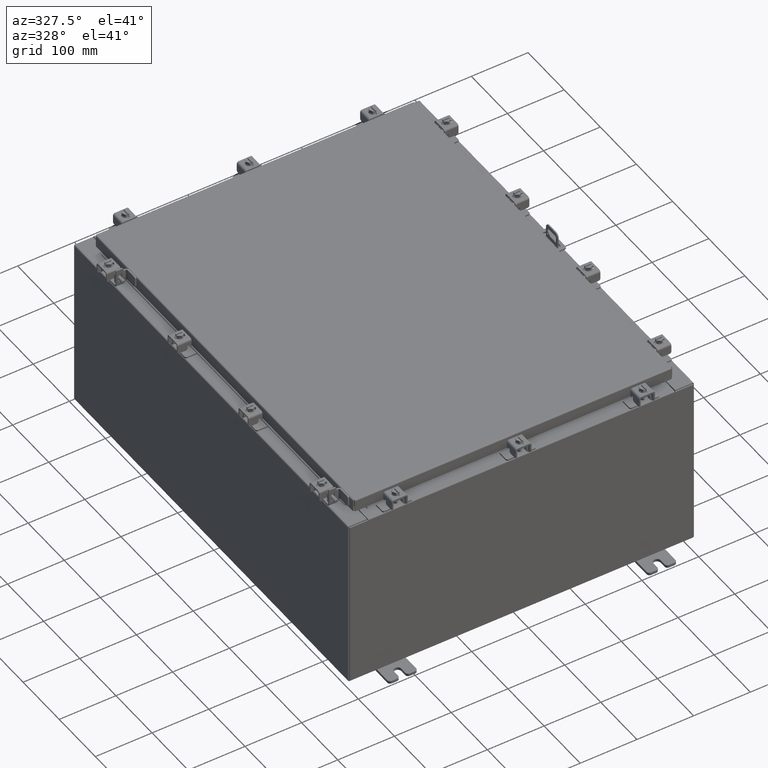
[diagram: clean part render]
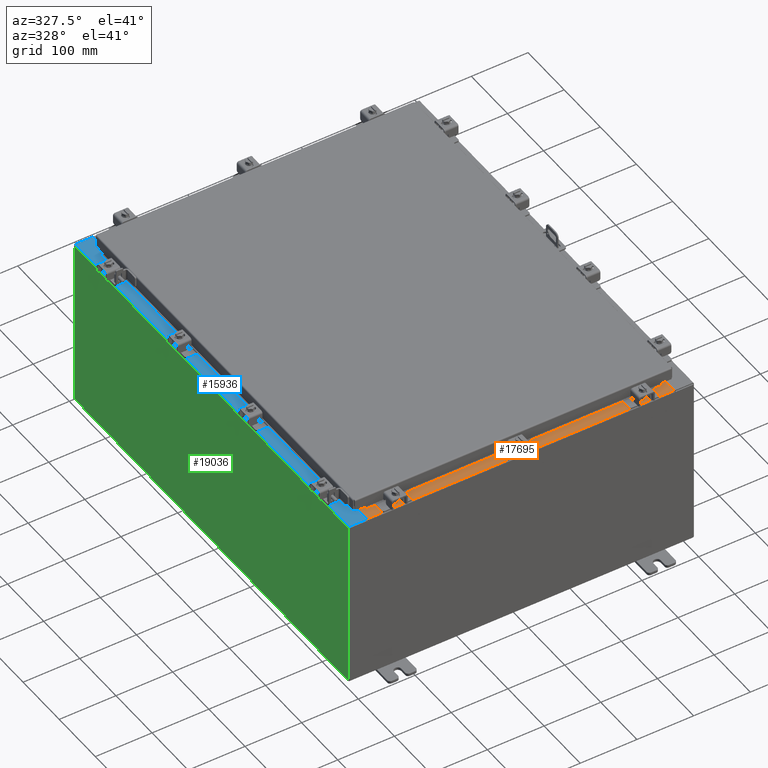
[diagram: same view with three faces highlighted in distinct colors, each labeled with its STEP entity id]
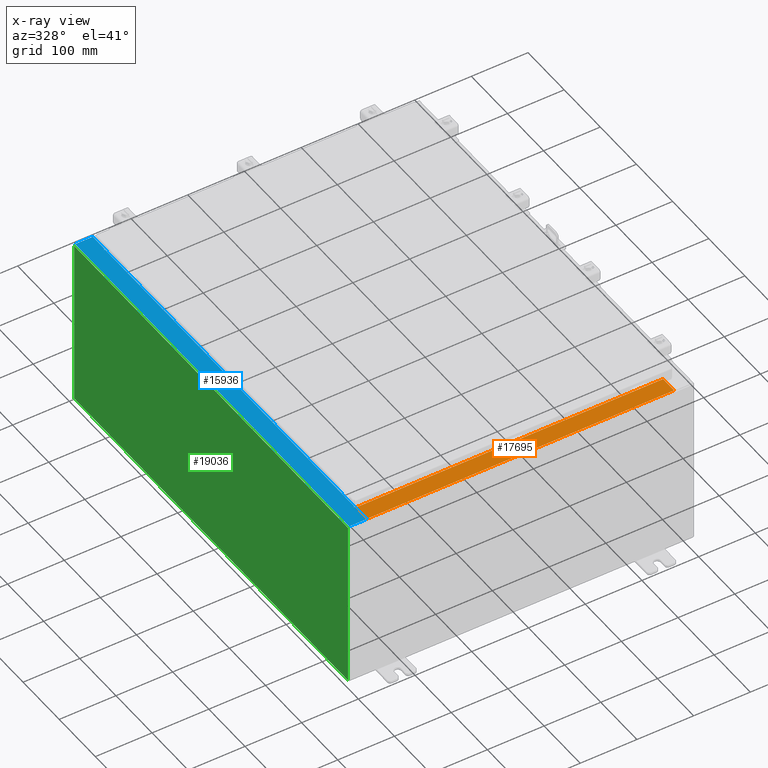
[diagram: x-ray of the same camera — body ghosted, the three highlighted faces saturated]
A machine part, auxiliary view with three faces highlighted in distinct colors.
The next image is the same camera in x-ray (body ghosted, the three faces saturated) — at least one of them is partly hidden behind the body in this view.
Their STEP definitions:

[orange] entity #17695 — the highlighted planar face has unit normal (-0, -0, 1).
#1166 = VECTOR ( 'NONE', #7410, 39.37007874015748100 ) ;
#1513 = LINE ( 'NONE', #16251, #18839 ) ;
#2139 = ORIENTED_EDGE ( 'NONE', *, *, #11378, .F. ) ;
#2371 = CARTESIAN_POINT ( 'NONE',  ( -3.422455537835030400E-018, -0.08770000000000026400, 6.000000000000001800 ) ) ;
#3551 = EDGE_CURVE ( 'NONE', #14423, #11171, #18797, .T. ) ;
#4355 = CARTESIAN_POINT ( 'NONE',  ( -10.63720000000000200, -0.07469999999999973900, 6.000000000000001800 ) ) ;
#6107 = CARTESIAN_POINT ( 'NONE',  ( -10.63720000000000200, -1.287299999999998100, 6.000000000000004400 ) ) ;
#6160 = DIRECTION ( 'NONE',  ( -0.0000000000000000000, 1.000000000000000000, -2.674785894579892700E-015 ) ) ;
#6278 = CARTESIAN_POINT ( 'NONE',  ( -3.422455537835030400E-018, 1.610972251716582100E-014, 6.000000000000001800 ) ) ;
#6653 = EDGE_CURVE ( 'NONE', #14091, #11171, #20348, .T. ) ;
#7178 = VECTOR ( 'NONE', #6160, 39.37007874015748100 ) ;
#7410 = DIRECTION ( 'NONE',  ( -1.000000000000000000, 0.0000000000000000000, 0.0000000000000000000 ) ) ;
#7826 = ORIENTED_EDGE ( 'NONE', *, *, #6653, .F. ) ;
#8051 = DIRECTION ( 'NONE',  ( 0.0000000000000000000, 2.674785894579892700E-015, 1.000000000000000000 ) ) ;
#9132 = CARTESIAN_POINT ( 'NONE',  ( 10.63720000000000400, -0.08770000000000002800, 6.000000000000001800 ) ) ;
#11171 = VERTEX_POINT ( 'NONE', #22974 ) ;
#11257 = LINE ( 'NONE', #12813, #1166 ) ;
#11378 = EDGE_CURVE ( 'NONE', #13032, #14091, #11257, .T. ) ;
#12813 = CARTESIAN_POINT ( 'NONE',  ( 10.63720000000000400, -1.287299999999998800, 6.000000000000003600 ) ) ;
#13032 = VERTEX_POINT ( 'NONE', #19087 ) ;
#13851 = FACE_OUTER_BOUND ( 'NONE', #20810, .T. ) ;
#14091 = VERTEX_POINT ( 'NONE', #6107 ) ;
#14423 = VERTEX_POINT ( 'NONE', #9132 ) ;
#14616 = VECTOR ( 'NONE', #14895, 39.37007874015748100 ) ;
#14886 = AXIS2_PLACEMENT_3D ( 'NONE', #6278, #8051, #20595 ) ;
#14895 = DIRECTION ( 'NONE',  ( -1.000000000000000000, 0.0000000000000000000, 0.0000000000000000000 ) ) ;
#16251 = CARTESIAN_POINT ( 'NONE',  ( 10.63720000000000200, -1.300299999999999800, 6.000000000000006200 ) ) ;
#17695 = ADVANCED_FACE ( 'NONE', ( #13851 ), #20510, .T. ) ;
#18309 = ORIENTED_EDGE ( 'NONE', *, *, #18517, .F. ) ;
#18517 = EDGE_CURVE ( 'NONE', #14423, #13032, #1513, .T. ) ;
#18797 = LINE ( 'NONE', #2371, #14616 ) ;
#18839 = VECTOR ( 'NONE', #21651, 39.37007874015748100 ) ;
#19087 = CARTESIAN_POINT ( 'NONE',  ( 10.63720000000000200, -1.287299999999998800, 6.000000000000006200 ) ) ;
#19941 = ORIENTED_EDGE ( 'NONE', *, *, #3551, .T. ) ;
#20348 = LINE ( 'NONE', #4355, #7178 ) ;
#20510 = PLANE ( 'NONE',  #14886 ) ;
#20595 = DIRECTION ( 'NONE',  ( 0.0000000000000000000, -1.000000000000000000, 2.674785894579892700E-015 ) ) ;
#20810 = EDGE_LOOP ( 'NONE', ( #7826, #2139, #18309, #19941 ) ) ;
#21651 = DIRECTION ( 'NONE',  ( -0.0000000000000000000, -1.000000000000000000, 3.566381192773190000E-015 ) ) ;
#22974 = CARTESIAN_POINT ( 'NONE',  ( -10.63720000000000200, -0.08770000000000026400, 6.000000000000001800 ) ) ;

[blue] entity #15936 — the highlighted planar face has unit normal (0, 0, -1).
#155 = EDGE_CURVE ( 'NONE', #20235, #22117, #14241, .T. ) ;
#286 = VECTOR ( 'NONE', #12819, 39.37007874015748100 ) ;
#306 = CARTESIAN_POINT ( 'NONE',  ( -10.69970000000004800, 13.63109999999999800, 11.92530000000000900 ) ) ;
#308 = EDGE_LOOP ( 'NONE', ( #13298, #14346, #3314, #10104, #14735, #10652, #1954, #13461, #937, #20228, #4313, #1935 ) ) ;
#329 = LINE ( 'NONE', #13853, #4499 ) ;
#531 = DIRECTION ( 'NONE',  ( 1.000000000000000000, -0.0000000000000000000, 7.132762385546384700E-015 ) ) ;
#546 = CARTESIAN_POINT ( 'NONE',  ( -10.71270000000005000, -13.59375000000000000, 11.92530000000000900 ) ) ;
#620 = CARTESIAN_POINT ( 'NONE',  ( -10.75005000000005000, 13.59374999999999800, 11.92530000000000900 ) ) ;
#734 = VERTEX_POINT ( 'NONE', #10073 ) ;
#743 = EDGE_CURVE ( 'NONE', #11649, #2054, #4126, .T. ) ;
#829 = CARTESIAN_POINT ( 'NONE',  ( -10.69970000000004800, 14.92530000000000000, 11.92530000000000900 ) ) ;
#937 = ORIENTED_EDGE ( 'NONE', *, *, #2080, .F. ) ;
#1935 = ORIENTED_EDGE ( 'NONE', *, *, #19782, .F. ) ;
#1954 = ORIENTED_EDGE ( 'NONE', *, *, #11403, .F. ) ;
#2054 = VERTEX_POINT ( 'NONE', #17754 ) ;
#2080 = EDGE_CURVE ( 'NONE', #6483, #734, #4955, .T. ) ;
#2138 = CARTESIAN_POINT ( 'NONE',  ( -10.71270000000005000, -13.59375000000000000, 11.92530000000000900 ) ) ;
#2282 = VECTOR ( 'NONE', #4519, 39.37007874015748100 ) ;
#2916 = CARTESIAN_POINT ( 'NONE',  ( -10.69970000000004800, 0.0000000000000000000, 11.92530000000000900 ) ) ;
#3314 = ORIENTED_EDGE ( 'NONE', *, *, #743, .T. ) ;
#4126 = LINE ( 'NONE', #15483, #22034 ) ;
#4153 = EDGE_CURVE ( 'NONE', #10232, #11649, #11778, .T. ) ;
#4313 = ORIENTED_EDGE ( 'NONE', *, *, #20519, .F. ) ;
#4499 = VECTOR ( 'NONE', #19172, 39.37007874015748100 ) ;
#4519 = DIRECTION ( 'NONE',  ( 0.0000000000000000000, 1.000000000000000000, 0.0000000000000000000 ) ) ;
#4590 = EDGE_CURVE ( 'NONE', #10232, #19920, #8663, .T. ) ;
#4853 = CARTESIAN_POINT ( 'NONE',  ( -10.75005000000005000, 13.61242499999999600, 11.92530000000000900 ) ) ;
#4955 = LINE ( 'NONE', #546, #6090 ) ;
#5242 = CARTESIAN_POINT ( 'NONE',  ( -10.75005000000005000, 13.63109999999999600, 11.92530000000000900 ) ) ;
#6090 = VECTOR ( 'NONE', #7665, 39.37007874015748100 ) ;
#6483 = VERTEX_POINT ( 'NONE', #2138 ) ;
#6657 = DIRECTION ( 'NONE',  ( 1.000000000000000000, 0.0000000000000000000, 0.0000000000000000000 ) ) ;
#7022 = CARTESIAN_POINT ( 'NONE',  ( -10.69970000000004800, 13.63109999999999800, 11.92530000000000900 ) ) ;
#7204 = VERTEX_POINT ( 'NONE', #18339 ) ;
#7476 = CARTESIAN_POINT ( 'NONE',  ( -10.75005000000005000, -13.63109999999999800, 11.92530000000000900 ) ) ;
#7655 = CARTESIAN_POINT ( 'NONE',  ( -10.69970000000004800, -13.63110000000000200, 11.92530000000000900 ) ) ;
#7665 = DIRECTION ( 'NONE',  ( -1.000000000000000000, 0.0000000000000000000, 0.0000000000000000000 ) ) ;
#7737 = CARTESIAN_POINT ( 'NONE',  ( -8.532114493236847900E-014, 0.0000000000000000000, 11.92530000000008500 ) ) ;
#7952 = VERTEX_POINT ( 'NONE', #620 ) ;
#8149 = VECTOR ( 'NONE', #16043, 39.37007874015748100 ) ;
#8228 = EDGE_CURVE ( 'NONE', #734, #17680, #16411, .T. ) ;
#8497 = VERTEX_POINT ( 'NONE', #18202 ) ;
#8576 = AXIS2_PLACEMENT_3D ( 'NONE', #20892, #10172, #22659 ) ;
#8585 = VECTOR ( 'NONE', #531, 39.37007874015748100 ) ;
#8663 = LINE ( 'NONE', #306, #286 ) ;
#9463 = PLANE ( 'NONE',  #16363 ) ;
#9515 = CARTESIAN_POINT ( 'NONE',  ( -8.532114493236847900E-014, -14.92530000000000000, 11.92530000000008500 ) ) ;
#9541 = DIRECTION ( 'NONE',  ( -1.000000000000000000, 0.0000000000000000000, -7.132762385546384700E-015 ) ) ;
#9792 = CARTESIAN_POINT ( 'NONE',  ( -10.75005000000005000, -13.63109999999999800, 11.92530000000000900 ) ) ;
#10073 = CARTESIAN_POINT ( 'NONE',  ( -10.75005000000005000, -13.59375000000000000, 11.92530000000000900 ) ) ;
#10104 = ORIENTED_EDGE ( 'NONE', *, *, #11987, .F. ) ;
#10121 = VECTOR ( 'NONE', #20023, 39.37007874015748100 ) ;
#10172 = DIRECTION ( 'NONE',  ( -7.132762385546384700E-015, -0.0000000000000000000, 1.000000000000000000 ) ) ;
#10232 = VERTEX_POINT ( 'NONE', #7022 ) ;
#10652 = ORIENTED_EDGE ( 'NONE', *, *, #155, .T. ) ;
#11249 = EDGE_CURVE ( 'NONE', #7204, #6483, #22424, .T. ) ;
#11367 = DIRECTION ( 'NONE',  ( 0.0000000000000000000, 1.000000000000000000, 0.0000000000000000000 ) ) ;
#11403 = EDGE_CURVE ( 'NONE', #17680, #22117, #19646, .T. ) ;
#11649 = VERTEX_POINT ( 'NONE', #829 ) ;
#11778 = LINE ( 'NONE', #2916, #2282 ) ;
#11987 = EDGE_CURVE ( 'NONE', #8497, #2054, #15991, .T. ) ;
#12794 = LINE ( 'NONE', #9515, #8585 ) ;
#12819 = DIRECTION ( 'NONE',  ( -1.000000000000000000, -4.340572780399910900E-014, 0.0000000000000000000 ) ) ;
#13298 = ORIENTED_EDGE ( 'NONE', *, *, #4590, .F. ) ;
#13461 = ORIENTED_EDGE ( 'NONE', *, *, #8228, .F. ) ;
#13853 = CARTESIAN_POINT ( 'NONE',  ( -10.75005000000005000, 13.59374999999999800, 11.92530000000000900 ) ) ;
#14241 = LINE ( 'NONE', #16751, #18428 ) ;
#14346 = ORIENTED_EDGE ( 'NONE', *, *, #4153, .T. ) ;
#14552 = EDGE_CURVE ( 'NONE', #8497, #20235, #12794, .T. ) ;
#14735 = ORIENTED_EDGE ( 'NONE', *, *, #14552, .T. ) ;
#15483 = CARTESIAN_POINT ( 'NONE',  ( -8.532114493236847900E-014, 14.92530000000000000, 11.92530000000008500 ) ) ;
#15936 = ADVANCED_FACE ( 'NONE', ( #16106 ), #9463, .F. ) ;
#15991 = LINE ( 'NONE', #19691, #19058 ) ;
#16043 = DIRECTION ( 'NONE',  ( -0.0000000000000000000, -1.000000000000000000, -0.0000000000000000000 ) ) ;
#16106 = FACE_OUTER_BOUND ( 'NONE', #308, .T. ) ;
#16115 = CARTESIAN_POINT ( 'NONE',  ( -10.71270000000005000, 13.59375000000000000, 11.92530000000000900 ) ) ;
#16363 = AXIS2_PLACEMENT_3D ( 'NONE', #7737, #20282, #9541 ) ;
#16411 = CIRCLE ( 'NONE', #8576, 0.01867499999999949400 ) ;
#16751 = CARTESIAN_POINT ( 'NONE',  ( -10.69970000000004800, 0.0000000000000000000, 11.92530000000000900 ) ) ;
#17392 = DIRECTION ( 'NONE',  ( -7.132762385546384700E-015, -0.0000000000000000000, 1.000000000000000000 ) ) ;
#17442 = DIRECTION ( 'NONE',  ( -1.000000000000000000, 0.0000000000000000000, -7.132762385546384700E-015 ) ) ;
#17680 = VERTEX_POINT ( 'NONE', #9792 ) ;
#17754 = CARTESIAN_POINT ( 'NONE',  ( -11.91230000000004600, 14.92530000000000000, 11.92530000000000000 ) ) ;
#18202 = CARTESIAN_POINT ( 'NONE',  ( -11.91230000000004600, -14.92530000000000000, 11.92530000000000000 ) ) ;
#18339 = CARTESIAN_POINT ( 'NONE',  ( -10.71270000000005000, 13.59374999999999800, 11.92530000000000900 ) ) ;
#18428 = VECTOR ( 'NONE', #11367, 39.37007874015748100 ) ;
#19058 = VECTOR ( 'NONE', #21471, 39.37007874015748100 ) ;
#19172 = DIRECTION ( 'NONE',  ( 1.000000000000000000, 0.0000000000000000000, 0.0000000000000000000 ) ) ;
#19646 = LINE ( 'NONE', #7476, #10121 ) ;
#19691 = CARTESIAN_POINT ( 'NONE',  ( -11.91230000000004600, 14.92530000000000000, 11.92530000000000000 ) ) ;
#19782 = EDGE_CURVE ( 'NONE', #19920, #7952, #21853, .T. ) ;
#19920 = VERTEX_POINT ( 'NONE', #5242 ) ;
#20023 = DIRECTION ( 'NONE',  ( 1.000000000000000000, 0.0000000000000000000, 0.0000000000000000000 ) ) ;
#20228 = ORIENTED_EDGE ( 'NONE', *, *, #11249, .F. ) ;
#20235 = VERTEX_POINT ( 'NONE', #22043 ) ;
#20282 = DIRECTION ( 'NONE',  ( 7.132762385546384700E-015, 0.0000000000000000000, -1.000000000000000000 ) ) ;
#20519 = EDGE_CURVE ( 'NONE', #7952, #7204, #329, .T. ) ;
#20892 = CARTESIAN_POINT ( 'NONE',  ( -10.75005000000005000, -13.61242500000000000, 11.92530000000000900 ) ) ;
#21471 = DIRECTION ( 'NONE',  ( -0.0000000000000000000, 1.000000000000000000, -0.0000000000000000000 ) ) ;
#21853 = CIRCLE ( 'NONE', #22147, 0.01867499999999949400 ) ;
#22034 = VECTOR ( 'NONE', #17442, 39.37007874015748100 ) ;
#22043 = CARTESIAN_POINT ( 'NONE',  ( -10.69970000000004800, -14.92530000000000000, 11.92530000000000900 ) ) ;
#22117 = VERTEX_POINT ( 'NONE', #7655 ) ;
#22147 = AXIS2_PLACEMENT_3D ( 'NONE', #4853, #17392, #6657 ) ;
#22424 = LINE ( 'NONE', #16115, #8149 ) ;
#22659 = DIRECTION ( 'NONE',  ( 1.000000000000000000, 0.0000000000000000000, 0.0000000000000000000 ) ) ;

[green] entity #19036 — the highlighted planar face has unit normal (1, 0, 0).
#262 = DIRECTION ( 'NONE',  ( -3.482016343714355500E-015, 0.0000000000000000000, 1.000000000000000000 ) ) ;
#1632 = CARTESIAN_POINT ( 'NONE',  ( -12.00000000000000500, 14.92530000000000000, 0.01299999999999984700 ) ) ;
#1693 = DIRECTION ( 'NONE',  ( 3.482016343714355500E-015, 0.0000000000000000000, -1.000000000000000000 ) ) ;
#1819 = VECTOR ( 'NONE', #10620, 39.37007874015748100 ) ;
#2052 = FACE_OUTER_BOUND ( 'NONE', #7231, .T. ) ;
#2475 = EDGE_CURVE ( 'NONE', #17094, #21635, #18846, .T. ) ;
#3495 = DIRECTION ( 'NONE',  ( 0.0000000000000000000, 1.000000000000000000, 0.0000000000000000000 ) ) ;
#4883 = DIRECTION ( 'NONE',  ( 3.482016343714355100E-015, 0.0000000000000000000, -1.000000000000000000 ) ) ;
#5598 = VERTEX_POINT ( 'NONE', #11764 ) ;
#6017 = ORIENTED_EDGE ( 'NONE', *, *, #2475, .T. ) ;
#6539 = CARTESIAN_POINT ( 'NONE',  ( -12.00000000000004600, -14.92530000000000000, 11.83760000000000000 ) ) ;
#7231 = EDGE_LOOP ( 'NONE', ( #6017, #16765, #13703, #14266 ) ) ;
#7976 = VECTOR ( 'NONE', #1693, 39.37007874015748100 ) ;
#8331 = CARTESIAN_POINT ( 'NONE',  ( -12.00000000000004600, -14.92530000000000000, 11.83760000000000000 ) ) ;
#8793 = LINE ( 'NONE', #10999, #23069 ) ;
#8874 = EDGE_CURVE ( 'NONE', #11606, #5598, #11324, .T. ) ;
#9317 = VECTOR ( 'NONE', #3495, 39.37007874015748100 ) ;
#10620 = DIRECTION ( 'NONE',  ( -0.0000000000000000000, 1.000000000000000000, -0.0000000000000000000 ) ) ;
#10999 = CARTESIAN_POINT ( 'NONE',  ( -12.00000000000000500, -14.92530000000000000, -4.204500978058386500E-014 ) ) ;
#11324 = LINE ( 'NONE', #1632, #1819 ) ;
#11606 = VERTEX_POINT ( 'NONE', #15074 ) ;
#11621 = CARTESIAN_POINT ( 'NONE',  ( -12.00000000000004600, 14.92530000000000000, 11.83760000000000000 ) ) ;
#11764 = CARTESIAN_POINT ( 'NONE',  ( -12.00000000000000500, 14.92530000000000000, 0.01299999999999984700 ) ) ;
#12394 = CARTESIAN_POINT ( 'NONE',  ( -12.00000000000000500, 14.92530000000000000, -4.204500978058386500E-014 ) ) ;
#12752 = LINE ( 'NONE', #12394, #7976 ) ;
#13703 = ORIENTED_EDGE ( 'NONE', *, *, #8874, .F. ) ;
#14266 = ORIENTED_EDGE ( 'NONE', *, *, #17437, .T. ) ;
#15074 = CARTESIAN_POINT ( 'NONE',  ( -12.00000000000000500, -14.92530000000000000, 0.01299999999999984700 ) ) ;
#15550 = CARTESIAN_POINT ( 'NONE',  ( -12.00000000000000500, 0.0000000000000000000, -4.204500978058386500E-014 ) ) ;
#15623 = DIRECTION ( 'NONE',  ( 1.000000000000000000, 0.0000000000000000000, 3.482016343714355100E-015 ) ) ;
#15654 = EDGE_CURVE ( 'NONE', #21635, #5598, #12752, .T. ) ;
#16765 = ORIENTED_EDGE ( 'NONE', *, *, #15654, .T. ) ;
#17094 = VERTEX_POINT ( 'NONE', #6539 ) ;
#17437 = EDGE_CURVE ( 'NONE', #11606, #17094, #8793, .T. ) ;
#18846 = LINE ( 'NONE', #8331, #9317 ) ;
#19036 = ADVANCED_FACE ( 'NONE', ( #2052 ), #22702, .F. ) ;
#21116 = AXIS2_PLACEMENT_3D ( 'NONE', #15550, #15623, #4883 ) ;
#21635 = VERTEX_POINT ( 'NONE', #11621 ) ;
#22702 = PLANE ( 'NONE',  #21116 ) ;
#23069 = VECTOR ( 'NONE', #262, 39.37007874015748100 ) ;